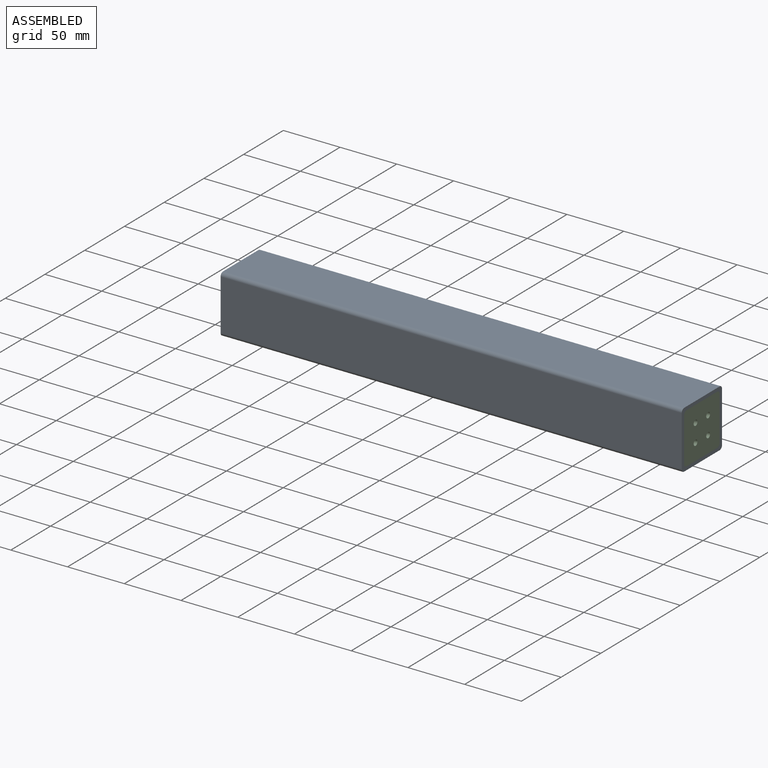
[diagram: assembled view]
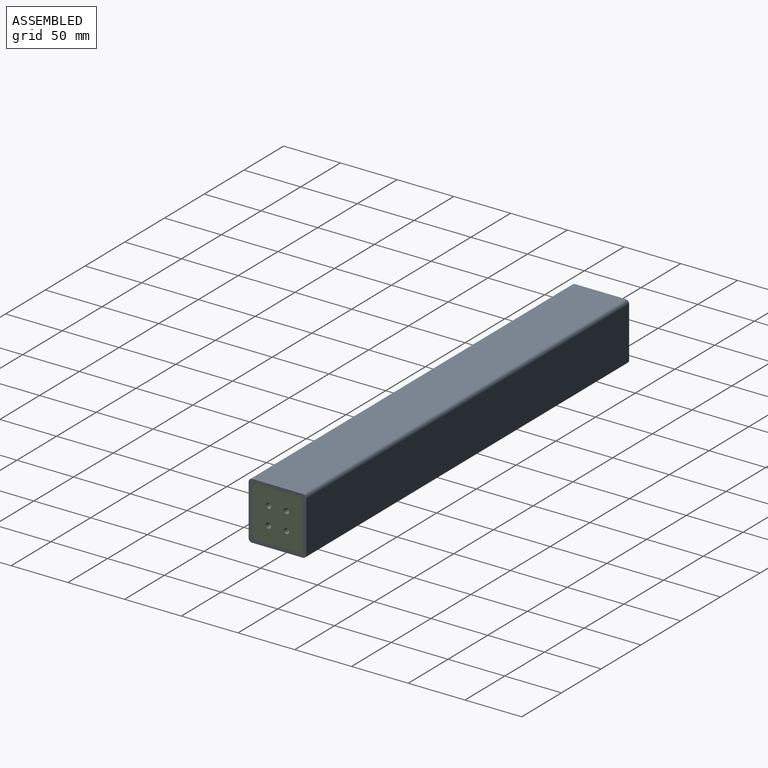
[diagram: assembled view, second angle]
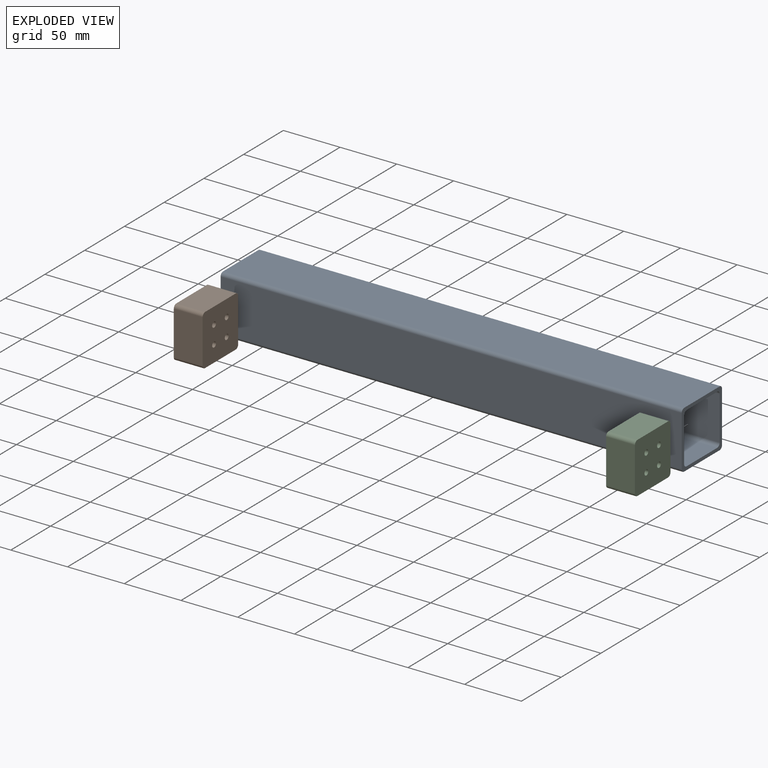
[diagram: exploded view]
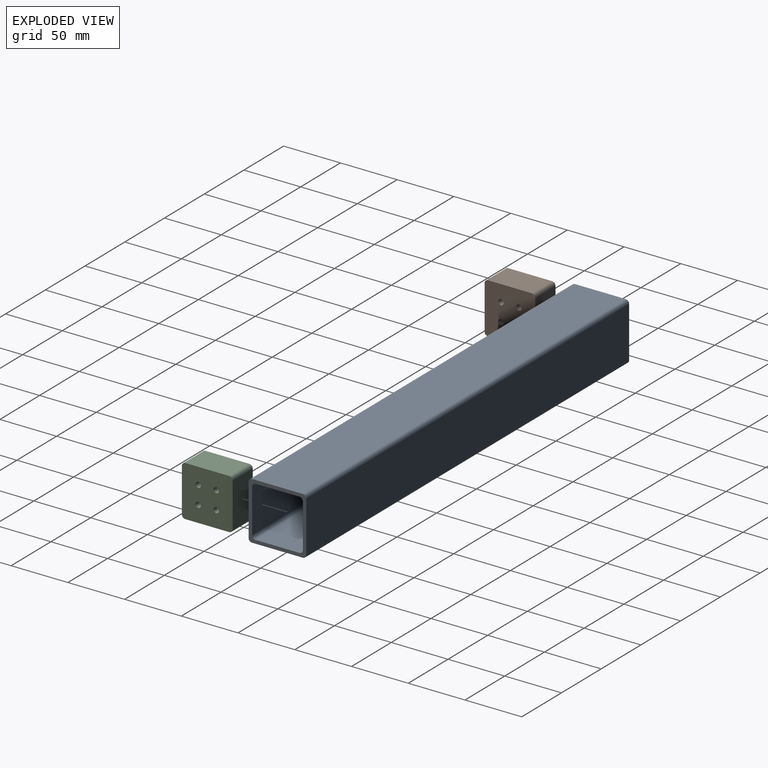
[diagram: exploded view, second angle]
ASSEMBLY  parts=3 mates=2
PART A: 18 faces, bbox 406.4x50.8x50.8 mm
  f0: plane 406.4x44.7mm, normal (0,0,-1), area 18167.7mm2, adj f8,f9,f10,f13
  f1: plane 406.4x44.7mm, normal (0,1,0), area 18167.7mm2, adj f8,f9,f10,f11
  f2: plane 406.4x44.7mm, normal (0,0,1), area 18167.7mm2, adj f8,f9,f11,f12
  f3: plane 406.4x38.61mm, normal (0,1,0), area 15690.3mm2, adj f8,f9,f14,f17
  f4: plane 406.4x38.61mm, normal (0,0,-1), area 15690.3mm2, adj f8,f9,f14,f15
  f5: plane 406.4x38.61mm, normal (0,-1,0), area 15690.3mm2, adj f8,f9,f15,f16
  f6: plane 406.4x38.61mm, normal (0,0,1), area 15690.3mm2, adj f8,f9,f16,f17
  f7: plane 406.4x44.7mm, normal (0,-1,0), area 18167.7mm2, adj f8,f9,f12,f13
  f8: plane 50.8x50.8mm, normal (1,0,0), area 582.2mm2, adj f0,f1,f2,f3,f4,f5,f6,f7
  f9: plane 50.8x50.8mm, normal (-1,0,0), area 582.2mm2, adj f0,f1,f2,f3,f4,f5,f6,f7
  f10: cylinder r=3.05mm len=406.4mm, axis (1,0,0), area 1945.8mm2, adj f0,f1,f8,f9
  f11: cylinder r=3.05mm len=406.4mm, axis (-1,0,0), area 1945.8mm2, adj f1,f2,f8,f9
  f12: cylinder r=3.05mm len=406.4mm, axis (1,0,0), area 1945.8mm2, adj f2,f7,f8,f9
  f13: cylinder r=3.05mm len=406.4mm, axis (-1,0,0), area 1945.8mm2, adj f0,f7,f8,f9
  f14: cylinder r=3.05mm len=406.4mm, axis (-1,0,0), area 1945.8mm2, adj f3,f4,f8,f9
  f15: cylinder r=3.05mm len=406.4mm, axis (1,0,0), area 1945.8mm2, adj f4,f5,f8,f9
  f16: cylinder r=3.05mm len=406.4mm, axis (-1,0,0), area 1945.8mm2, adj f5,f6,f8,f9
  f17: cylinder r=3.05mm len=406.4mm, axis (1,0,0), area 1945.8mm2, adj f3,f6,f8,f9
PART B: 14 faces, bbox 25.4x44.7x44.7 mm
  f0: plane 38.61x25.4mm, normal (0,-1,0), area 980.6mm2, adj f4,f5,f6,f9
  f1: plane 38.61x25.4mm, normal (0,0,-1), area 980.6mm2, adj f4,f5,f6,f7
  f2: plane 38.61x25.4mm, normal (0,1,0), area 980.6mm2, adj f4,f5,f7,f8
  f3: plane 38.61x25.4mm, normal (0,0,1), area 980.6mm2, adj f4,f5,f8,f9
  f4: plane 44.7x44.7mm, normal (1,0,0), area 1919.2mm2, adj f0,f1,f2,f3,f6,f7,f8,f9
  f5: plane 44.7x44.7mm, normal (-1,0,0), area 1919.2mm2, adj f0,f1,f2,f3,f6,f7,f8,f9
  f6: cylinder r=3.05mm len=25.4mm, axis (1,0,0), area 121.6mm2, adj f0,f1,f4,f5
  f7: cylinder r=3.05mm len=25.4mm, axis (-1,0,0), area 121.6mm2, adj f1,f2,f4,f5
  f8: cylinder r=3.05mm len=25.4mm, axis (1,0,0), area 121.6mm2, adj f2,f3,f4,f5
  f9: cylinder r=3.05mm len=25.4mm, axis (-1,0,0), area 121.6mm2, adj f0,f3,f4,f5
  f10: cylinder r=2.38mm len=25.4mm, axis (-1,0,0), area 380mm2, adj f4,f5
  f11: cylinder r=2.38mm len=25.4mm, axis (-1,0,0), area 380mm2, adj f4,f5
  f12: cylinder r=2.38mm len=25.4mm, axis (-1,0,0), area 380mm2, adj f4,f5
  f13: cylinder r=2.38mm len=25.4mm, axis (-1,0,0), area 380mm2, adj f4,f5
PART C: same geometry as B
PLACE A t=(-127.42,25.4,-57.47)mm
PLACE B t=(-127.42,-22.35,-54.42)mm
PLACE C t=(253.58,-22.35,-54.42)mm
MATE fastened A.f5 <-> B.f2  axis (0,-1,0) through (-114.72,22.35,-32.07)mm
MATE fastened C.f2 <-> A.f5  axis (0,1,0) through (266.28,22.35,-32.07)mm
